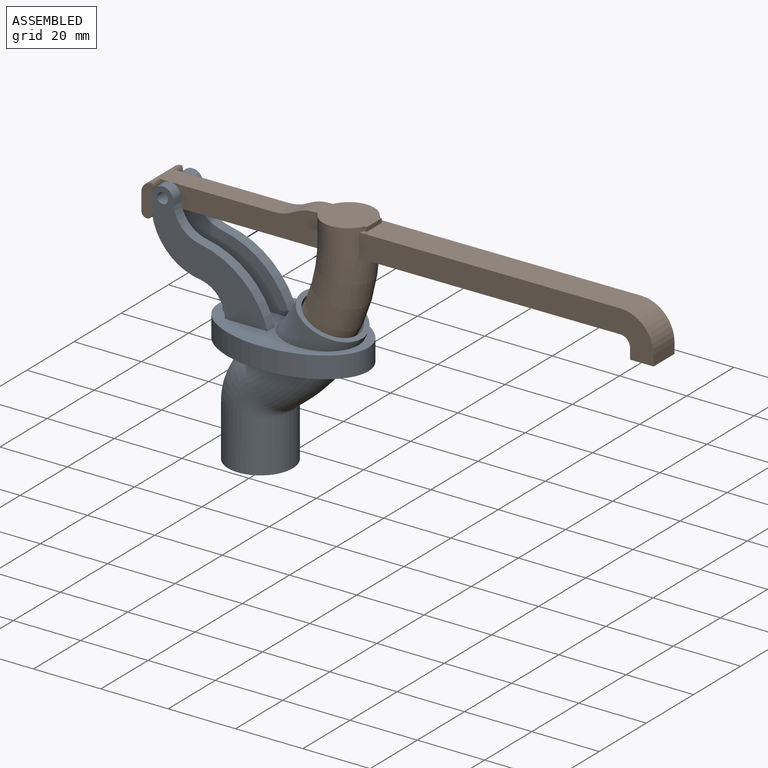
[diagram: assembled view]
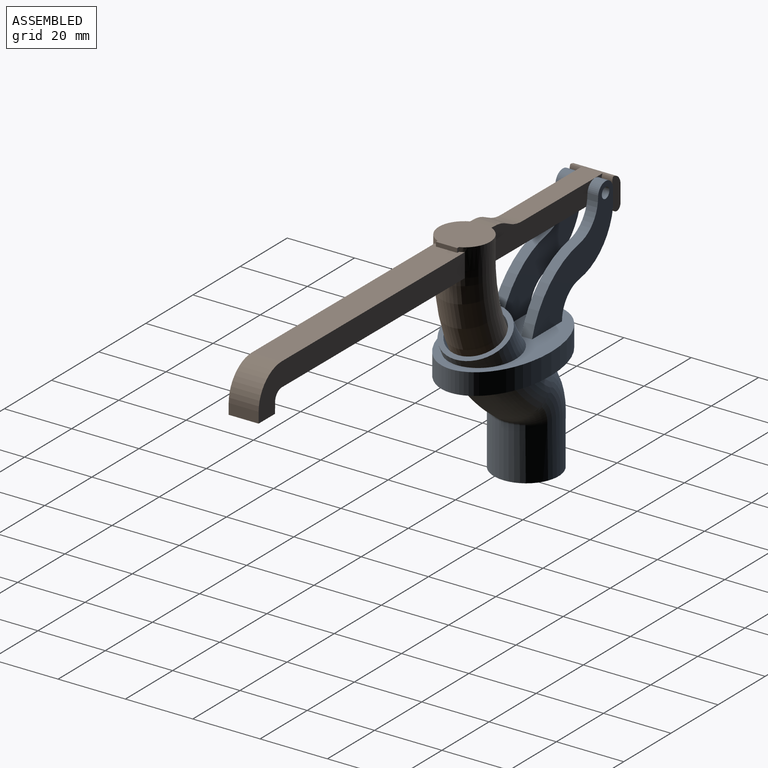
[diagram: assembled view, second angle]
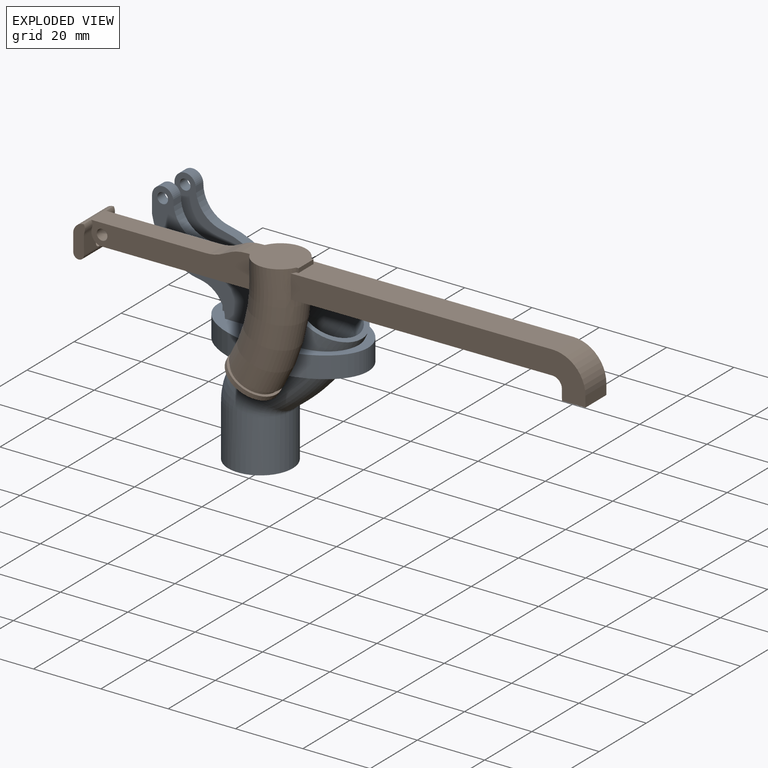
[diagram: exploded view]
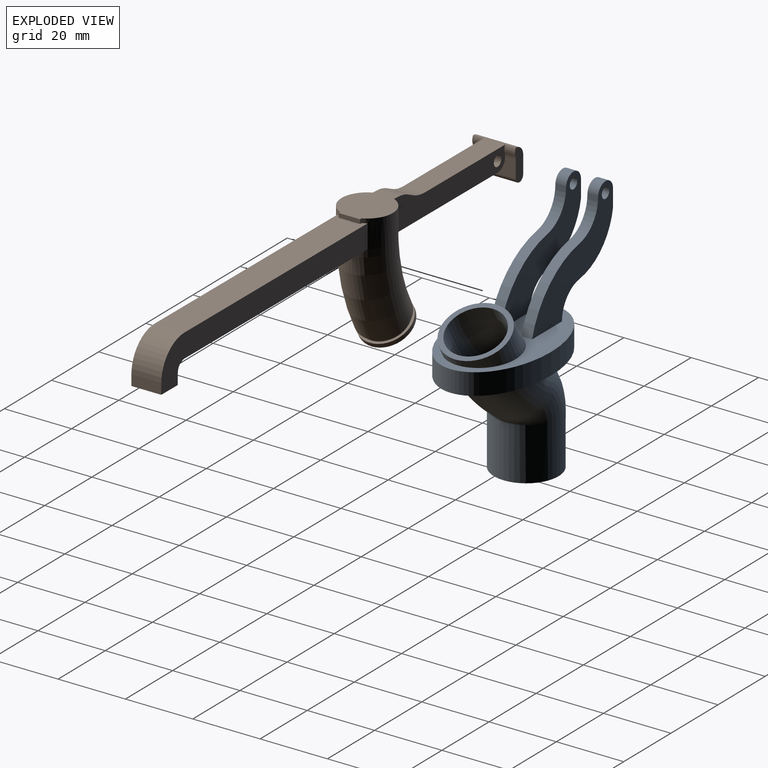
[diagram: exploded view, second angle]
ASSEMBLY  parts=2 mates=2
PART A: 44 faces, bbox 61x28.6x69 mm
  f0: extruded ~44.45x28.58mm, area 737mm2, adj f1,f2
  f1: plane 44.45x28.58mm, normal (0,0,1), area 551.9mm2, adj f0,f3,f8,f10,f11,f12,f17,f19
  f2: plane 44.45x28.58mm, normal (0,0,-1), area 601.6mm2, adj f0,f22,f23
  f3: cylinder r=8.64mm len=8.56mm, axis (0,-1,0), area 39.4mm2, adj f1,f4,f10,f11
  f4: cylinder r=16.62mm len=14.18mm, axis (0,-1,0), area 67.3mm2, adj f3,f5,f10,f11
  f5: plane 5.08x3.18mm, normal (-1,0,0), area 16.1mm2, adj f4,f6,f10,f11
  f6: cylinder r=3.17mm len=6.35mm, axis (0,-1,0), area 31.7mm2, adj f5,f7,f10,f11
  f7: cylinder r=9.49mm len=9.35mm, axis (0,-1,0), area 42mm2, adj f6,f8,f10,f11
  f8: cylinder r=25.73mm len=20.18mm, axis (0,-1,0), area 90.6mm2, adj f1,f7,f10,f11
  f9: cylinder r=1.59mm len=3.18mm, axis (0,-1,0), area 31.7mm2, adj f10,f11
  f10: plane 34.37x30.61mm, normal (0,1,0), area 371.3mm2, adj f1,f3,f4,f5,f6,f7,f8,f9
  f11: plane 34.37x30.61mm, normal (0,-1,0), area 371.3mm2, adj f1,f3,f4,f5,f6,f7,f8,f9
  f12: cylinder r=25.73mm len=20.18mm, axis (0,1,0), area 90.6mm2, adj f1,f13,f19,f20
  f13: cylinder r=9.49mm len=9.35mm, axis (0,1,0), area 42mm2, adj f12,f14,f19,f20
  f14: cylinder r=3.17mm len=6.35mm, axis (0,1,0), area 31.7mm2, adj f13,f15,f19,f20
  f15: plane 5.08x3.18mm, normal (-1,0,0), area 16.1mm2, adj f14,f16,f19,f20
  f16: cylinder r=16.62mm len=14.18mm, axis (0,1,0), area 67.3mm2, adj f15,f17,f19,f20
  f17: cylinder r=8.64mm len=8.56mm, axis (0,1,0), area 39.4mm2, adj f1,f16,f19,f20
  f18: cylinder r=1.59mm len=3.18mm, axis (0,1,0), area 31.7mm2, adj f19,f20
  f19: plane 34.37x30.61mm, normal (0,-1,0), area 371.3mm2, adj f1,f12,f13,f14,f15,f16,f17,f18
  f20: plane 34.37x30.61mm, normal (0,1,0), area 371.3mm2, adj f1,f12,f13,f14,f15,f16,f17,f18
  f21: torus R=10.69mm, axis (0,-1,0), area 522.3mm2, adj f26,f32
  f22: torus R=10.69mm, axis (0,-1,0), area 619mm2, adj f2,f23,f33
  f23: torus R=50.8mm, axis (0,1,0), area 690.1mm2, adj f2,f22
  f24: torus R=50.8mm, axis (0,1,0), area 418.8mm2, adj f1,f25
  f25: plane 19.2x17.4mm, normal (0.42,0,0.91), area 83.4mm2, adj f24,f26
  f26: torus R=50.8mm, axis (0,1,0), area 1353.7mm2, adj f21,f25
  f27: cylinder r=4.85mm len=9.7mm, axis (0,0,1), area 76.2mm2, adj f28,f36
  f28: plane 13.2x13.2mm, normal (0,0,1), area 62.9mm2, adj f27,f29
  f29: cylinder r=6.6mm len=13.2mm, axis (0,0,1), area 66.4mm2, adj f28,f30
  f30: plane 13.2x13.2mm, normal (0,0,-1), area 62.9mm2, adj f29,f31
  f31: cylinder r=4.85mm len=9.7mm, axis (0,0,1), area 76.2mm2, adj f30,f32
  f32: cone r=4.85mm half-angle=52.4deg, axis (0,0,1), area 166.8mm2, adj f21,f31
  f33: cylinder r=9.6mm len=19.2mm, axis (0,0,1), area 931.9mm2, adj f22,f34
  f34: plane 19.2x19.2mm, normal (0,0,-1), area 91.6mm2, adj f33,f35
  f35: cylinder r=7.94mm len=15.88mm, axis (0,0,1), area 162.7mm2, adj f34,f36
  f36: cone r=4.85mm half-angle=45deg, axis (0,0,-1), area 175.4mm2, adj f27,f35
  f37: plane 5.72x4.75mm, normal (1,0,0), area 17.8mm2, adj f1,f38,f40,f41,f42,f43
  f38: plane 3.18x1.59mm, normal (0,1,0), area 5mm2, adj f1,f37,f39,f43
  f39: plane 5.72x4.75mm, normal (-1,0,0), area 17.8mm2, adj f1,f38,f40,f41,f42,f43
  f40: plane 3.18x1.59mm, normal (0,-1,0), area 5mm2, adj f1,f37,f39,f42
  f41: cylinder r=1.27mm len=3.18mm, axis (-1,0,0), area 25.3mm2, adj f37,f39
  f42: cylinder r=3.17mm len=3.18mm, axis (-1,0,0), area 14.8mm2, adj f37,f39,f40,f43
  f43: cylinder r=3.17mm len=3.18mm, axis (1,0,0), area 14.8mm2, adj f37,f38,f39,f42
PART B: 55 faces, bbox 150.9x15.3x38.7 mm
  f0: plane 6.35x1.27mm, normal (1,0,0), area 8.1mm2, adj f4,f5,f8,f24
  f1: plane 13.2x11.71mm, normal (-0.46,0,-0.89), area 62.9mm2, adj f28,f29
  f2: cylinder r=6.6mm len=13.2mm, axis (0,0,-1), area 115.1mm2, adj f6,f7,f25,f27
  f3: torus R=50.8mm, axis (0,1,0), area 1249.1mm2, adj f16,f17,f18,f19,f20,f21,f22,f23
  f4: plane 1.27x0.7mm, normal (0,1,0), area 0.9mm2, adj f0,f8,f20,f24
  f5: plane 1.27x0.7mm, normal (0,-1,0), area 0.9mm2, adj f0,f8,f19,f24
  f6: plane 90.4x13.2mm, normal (0,0,-1), area 529.9mm2, adj f2,f25,f27,f39
  f7: torus R=50.8mm, axis (0,1,0), area 860.7mm2, adj f2,f26,f33
  f8: plane 15.2x15.2mm, normal (0,0,1), area 184.3mm2, adj f0,f4,f5,f9,f17,f18,f19,f20
  f9: extruded ~12.7x6.35mm, area 84.1mm2, adj f8,f10,f17,f18
  f10: plane 33.68x6.35mm, normal (0,0,1), area 213.8mm2, adj f9,f17,f18,f47
  f11: plane 12.7x5.08mm, normal (-1,0,0), area 59.4mm2, adj f12,f47,f48,f51,f54
  f12: cylinder r=1.59mm len=12.7mm, axis (0,1,0), area 63.3mm2, adj f11,f13,f48,f51
  f13: plane 12.7x5.08mm, normal (1,0,0), area 59.4mm2, adj f12,f15,f48,f49,f50,f51,f54
  f14: cylinder r=1.59mm len=6.35mm, axis (0,1,0), area 63.3mm2, adj f17,f18
  f15: cylinder r=3.17mm len=6.35mm, axis (0,1,0), area 31.7mm2, adj f13,f16,f17,f18
  f16: plane 43.89x6.46mm, normal (0,0,-1), area 275mm2, adj f3,f15,f17,f18
  f17: plane 47.07x9.53mm, normal (0,1,0), area 310.5mm2, adj f3,f8,f9,f10,f14,f15,f16,f20
  f18: plane 47.07x9.53mm, normal (0,-1,0), area 310.5mm2, adj f3,f8,f9,f10,f14,f15,f16,f19
  f19: cylinder r=7.6mm len=13.81mm, axis (0,0,-1), area 102.5mm2, adj f3,f5,f8,f18,f23,f24
  f20: cylinder r=7.6mm len=13.81mm, axis (0,0,-1), area 102.5mm2, adj f3,f4,f8,f17,f21,f24
  f21: plane 87.51x13.02mm, normal (0,1,0), area 634.2mm2, adj f3,f20,f22,f24,f34,f35,f36,f37
  f22: plane 77.77x9mm, normal (0,0,-1), area 681.8mm2, adj f3,f21,f23,f35
  f23: plane 87.51x13.02mm, normal (0,-1,0), area 634.2mm2, adj f3,f19,f22,f24,f34,f35,f36,f37
  f24: plane 77.64x8.89mm, normal (0,0,1), area 680.1mm2, adj f0,f4,f5,f19,f20,f21,f23,f34
  f25: plane 85.65x11.11mm, normal (0,1,0), area 288.5mm2, adj f2,f6,f26,f38,f39,f40,f41,f42
  f26: plane 77.71x5.08mm, normal (0,0,1), area 393mm2, adj f7,f25,f27,f40
  f27: plane 85.65x11.11mm, normal (0,-1,0), area 288.5mm2, adj f2,f6,f26,f38,f39,f40,f41,f42
  f28: torus R=50.8mm, axis (0,1,0), area 57.5mm2, adj f1,f33
  f29: torus R=50.8mm, axis (0,1,0), area 66.4mm2, adj f1,f30
  f30: plane 13.2x11.51mm, normal (0.49,0,0.87), area 62.9mm2, adj f29,f31
  f31: torus R=50.8mm, axis (0,1,0), area 113.4mm2, adj f30,f46
  f32: plane 15.2x13.11mm, normal (-0.51,0,-0.86), area 34mm2, adj f3,f43
  f33: bspline ~13.29x12.32mm, area 90.7mm2, adj f7,f28
  f34: cylinder r=9.84mm len=9.84mm, axis (0,1,0), area 137.4mm2, adj f21,f23,f24,f36
  f35: cylinder r=2.86mm len=8.89mm, axis (0,1,0), area 39.9mm2, adj f21,f22,f23,f37
  f36: plane 8.89x3.18mm, normal (1,0,0), area 28.2mm2, adj f21,f23,f34,f38
  f37: plane 8.89x3.18mm, normal (-1,0,0), area 28.2mm2, adj f21,f23,f35,f38
  f38: plane 8.89x6.99mm, normal (0,0,-1), area 46mm2, adj f21,f23,f25,f27,f36,f37,f41,f42
  f39: cylinder r=7.94mm len=7.94mm, axis (0,1,0), area 63.3mm2, adj f6,f25,f27,f41
  f40: cylinder r=4.76mm len=5.08mm, axis (0,1,0), area 38mm2, adj f25,f26,f27,f42
  f41: plane 5.08x3.18mm, normal (-1,0,0), area 16.1mm2, adj f25,f27,f38,f39
  f42: plane 5.08x3.18mm, normal (1,0,0), area 16.1mm2, adj f25,f27,f38,f40
  f43: torus R=50.8mm, axis (0,1,0), area 60.1mm2, adj f32,f45
  f44: torus R=50.8mm, axis (0,1,0), area 63.5mm2, adj f45,f46
  f45: plane 15.2x12.89mm, normal (0.53,0,0.85), area 34mm2, adj f43,f44
  f46: plane 15.2x12.68mm, normal (-0.55,0,-0.83), area 107.6mm2, adj f31,f44
  f47: cylinder r=3.17mm len=12.7mm, axis (0,-1,0), area 63.3mm2, adj f10,f11,f48,f51,f52,f53
  f48: plane 9.84x3.51mm, normal (0,-1,0), area 28.6mm2, adj f11,f12,f13,f47,f49,f53
  f49: cylinder r=3.17mm len=3.18mm, axis (0,1,0), area 3.5mm2, adj f13,f18,f48,f53
  f50: cylinder r=3.17mm len=3.18mm, axis (0,1,0), area 3.5mm2, adj f13,f17,f51,f52
  f51: plane 9.84x3.51mm, normal (0,1,0), area 28.6mm2, adj f11,f12,f13,f47,f50,f52
  f52: cylinder r=2.54mm len=3.18mm, axis (0,1,0), area 6.9mm2, adj f17,f47,f50,f51
  f53: cylinder r=2.54mm len=3.18mm, axis (0,1,0), area 6.9mm2, adj f18,f47,f48,f49
  f54: cylinder r=1.27mm len=3.18mm, axis (-1,0,0), area 25.3mm2, adj f11,f13
PLACE A t=(8.75,-13.69,-7.13)mm fixed
PLACE B rot(axis=(0,-1,0),0.3deg) t=(-25.62,-13.69,26.65)mm
MATE planar A.f11 <-> B.f17  axis (0,-1,0) through (-12.91,-10.52,12.03)mm
MATE cylindrical B.f14 <-> A.f6  axis (0,1,0) through (-25.62,-13.69,26.65)mm
